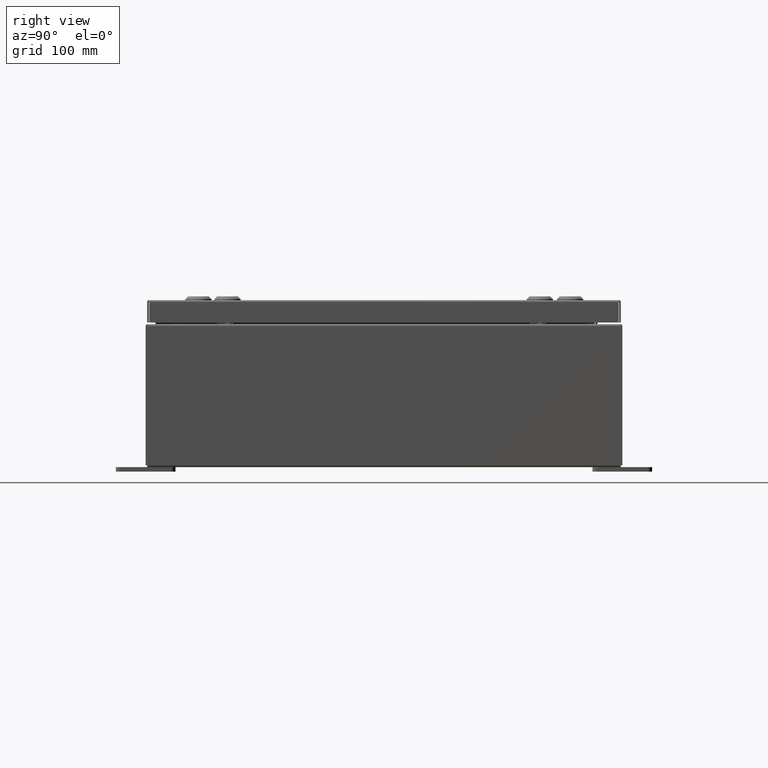
[diagram: clean part render]
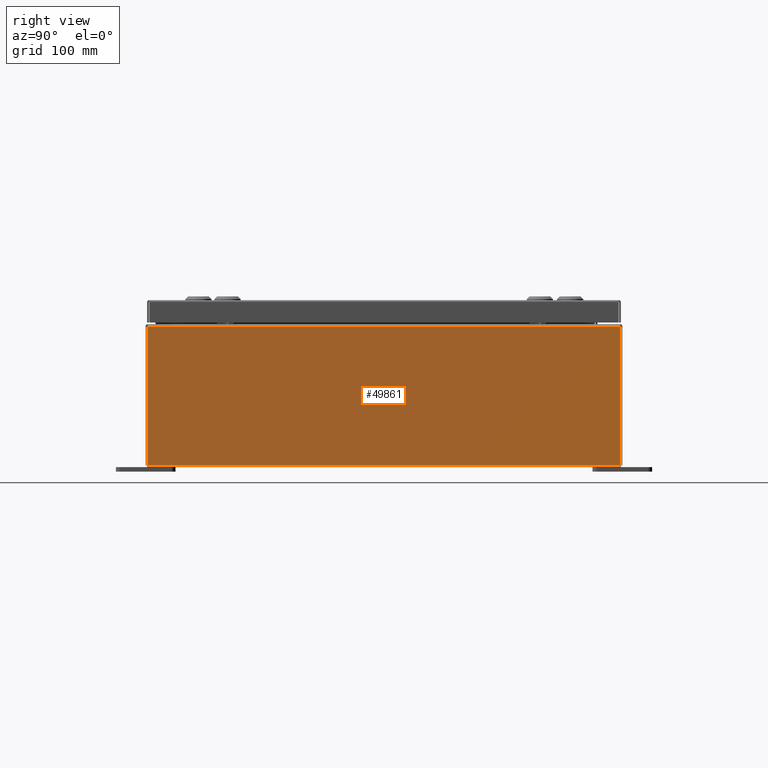
[diagram: same view with one face highlighted and labeled with its STEP entity id]
A machine part, right view. The second image highlights one B-rep face of the part: STEP entity #49861.
In plain terms, the highlighted planar face has unit normal (-1, 0, 0).
Its self-contained STEP definition (entity closure, byte-faithful):
#2519 = DIRECTION ( 'NONE',  ( 3.503965158194252100E-015, 0.0000000000000000000, 1.000000000000000000 ) ) ;
#6142 = ORIENTED_EDGE ( 'NONE', *, *, #51698, .F. ) ;
#7190 = EDGE_LOOP ( 'NONE', ( #52797, #24405, #6142, #40833 ) ) ;
#8248 = EDGE_CURVE ( 'NONE', #47973, #33717, #28813, .T. ) ;
#13340 = DIRECTION ( 'NONE',  ( -1.000000000000000000, 0.0000000000000000000, 3.503965158194251300E-015 ) ) ;
#18898 = DIRECTION ( 'NONE',  ( -0.0000000000000000000, -1.000000000000000000, -0.0000000000000000000 ) ) ;
#19080 = EDGE_CURVE ( 'NONE', #54120, #60705, #44566, .T. ) ;
#19146 = AXIS2_PLACEMENT_3D ( 'NONE', #42521, #13340, #47449 ) ;
#22474 = CARTESIAN_POINT ( 'NONE',  ( 8.000000000000023100, -9.925300000000001800, 5.837599999999999200 ) ) ;
#23124 = CARTESIAN_POINT ( 'NONE',  ( 8.000000000000001800, -9.925300000000001800, 0.01299999999999984700 ) ) ;
#23807 = CARTESIAN_POINT ( 'NONE',  ( 8.000000000000023100, 9.925299999999992900, 5.837599999999999200 ) ) ;
#24405 = ORIENTED_EDGE ( 'NONE', *, *, #8248, .T. ) ;
#28813 = LINE ( 'NONE', #62624, #40272 ) ;
#30202 = LINE ( 'NONE', #23807, #54631 ) ;
#33357 = DIRECTION ( 'NONE',  ( -3.503965158194252100E-015, 0.0000000000000000000, -1.000000000000000000 ) ) ;
#33717 = VERTEX_POINT ( 'NONE', #54706 ) ;
#35674 = CARTESIAN_POINT ( 'NONE',  ( 8.000000000000023100, 9.925299999999991100, 5.837599999999999200 ) ) ;
#36902 = VECTOR ( 'NONE', #57263, 39.37007874015748100 ) ;
#37651 = PLANE ( 'NONE',  #19146 ) ;
#38436 = LINE ( 'NONE', #23124, #36902 ) ;
#38753 = EDGE_CURVE ( 'NONE', #60705, #47973, #30202, .T. ) ;
#40272 = VECTOR ( 'NONE', #33357, 39.37007874015748100 ) ;
#40833 = ORIENTED_EDGE ( 'NONE', *, *, #19080, .T. ) ;
#41500 = CARTESIAN_POINT ( 'NONE',  ( 8.000000000000001800, 9.925299999999998200, -2.829253492156560500E-014 ) ) ;
#42521 = CARTESIAN_POINT ( 'NONE',  ( 8.000000000000001800, 0.0000000000000000000, -2.829253492156560500E-014 ) ) ;
#44566 = LINE ( 'NONE', #41500, #57575 ) ;
#47449 = DIRECTION ( 'NONE',  ( 3.503965158194251300E-015, 0.0000000000000000000, 1.000000000000000000 ) ) ;
#47973 = VERTEX_POINT ( 'NONE', #22474 ) ;
#49861 = ADVANCED_FACE ( 'NONE', ( #55314 ), #37651, .F. ) ;
#50820 = CARTESIAN_POINT ( 'NONE',  ( 8.000000000000001800, 9.925299999999996500, 0.01299999999999984700 ) ) ;
#51698 = EDGE_CURVE ( 'NONE', #54120, #33717, #38436, .T. ) ;
#52797 = ORIENTED_EDGE ( 'NONE', *, *, #38753, .T. ) ;
#54120 = VERTEX_POINT ( 'NONE', #50820 ) ;
#54631 = VECTOR ( 'NONE', #18898, 39.37007874015748100 ) ;
#54706 = CARTESIAN_POINT ( 'NONE',  ( 8.000000000000001800, -9.925300000000001800, 0.01299999999999984500 ) ) ;
#55314 = FACE_OUTER_BOUND ( 'NONE', #7190, .T. ) ;
#57263 = DIRECTION ( 'NONE',  ( -0.0000000000000000000, -1.000000000000000000, -0.0000000000000000000 ) ) ;
#57575 = VECTOR ( 'NONE', #2519, 39.37007874015748100 ) ;
#60705 = VERTEX_POINT ( 'NONE', #35674 ) ;
#62624 = CARTESIAN_POINT ( 'NONE',  ( 8.000000000000001800, -9.925300000000001800, -2.829253492156560500E-014 ) ) ;